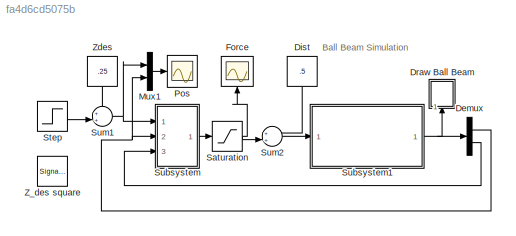
MODEL slx_fa4d6cd5075b
KIND model
CONFIG AbsTol = auto
CONFIG EnableMultiTasking = on
CONFIG FixedStep = auto
CONFIG InitFcn = param
CONFIG MaxStep = auto
CONFIG MinStep = auto
CONFIG RelTol = 1e-3
CONFIG SampleTimeConstraint = Unconstrained
CONFIG Solver = ode45
CONFIG SolverName = ode45
CONFIG StartTime = 0.0
CONFIG StopTime = 1000
BLOCK [Demux] Demux
  DisplayOption = bar
  Outputs = 2
  Ports = [1, 2]
BLOCK [Constant] Dist
  Value = .5
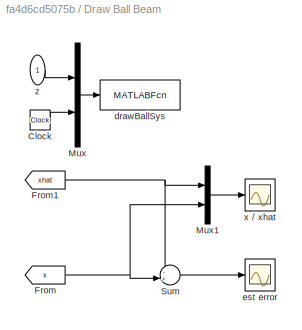
BLOCK [SubSystem] Draw Ball Beam
  Ports = [1]
  RequestExecContextInheritance = off
  Variant = off
BLOCK [Clock] Draw Ball Beam/Clock
BLOCK [From] Draw Ball Beam/From
  GotoTag = x
  TagVisibility = global
BLOCK [From] Draw Ball Beam/From1
  GotoTag = xhat
  TagVisibility = global
BLOCK [Mux] Draw Ball Beam/Mux
  DisplayOption = bar
  Inputs = 2
  Ports = [2, 1]
BLOCK [Mux] Draw Ball Beam/Mux1
  DisplayOption = bar
  Inputs = 2
  Ports = [2, 1]
BLOCK [Sum] Draw Ball Beam/Sum
  IconShape = round
  InputSameDT = off
  Inputs = -+|
  OutDataTypeStr = Inherit: Inherit via internal rule
  Ports = [2, 1]
  SaturateOnIntegerOverflow = off
BLOCK [MATLABFcn] Draw Ball Beam/drawBallSys
  MATLABFcn = drawBallSys(u)
  OutputDimensions = 0
  Ports = [1]
  SampleTime = .5
BLOCK [Scope] Draw Ball Beam/est error
  NumInputPorts = 1
  Ports = [1]
  ScopeSpecificationString = Simulink.scopes.TimeScopeBlockCfg('CurrentConfiguration', extmgr.ConfigurationSet(extmgr.Configuration('Core','General UI',true),extmgr.Configuration('Core','Source UI',true),extmgr.Configuration('Sources','WiredSimulink',true,'DataLoggingVariableName','ScopeData1','DataLoggingSaveFormat','StructureWithTime','DataLoggingLimitDataPoints',true,'DataLoggingDecimation','1','DataLoggingDecimateData',tr...<+1779ch>
BLOCK [Scope] Draw Ball Beam/x // xhat
  NumInputPorts = 1
  Ports = [1]
  ScopeSpecificationString = Simulink.scopes.TimeScopeBlockCfg('CurrentConfiguration', extmgr.ConfigurationSet(extmgr.Configuration('Core','General UI',true),extmgr.Configuration('Core','Source UI',true),extmgr.Configuration('Sources','WiredSimulink',true,'DataLoggingVariableName','ScopeData2','DataLoggingSaveFormat','StructureWithTime','DataLoggingLimitDataPoints',true,'DataLoggingDecimation','1','DataLoggingDecimateData',tr...<+1844ch>
BLOCK [Inport] Draw Ball Beam/z
  IconDisplay = Port number
BLOCK [Scope] Force
  NumInputPorts = 1
  Ports = [1]
  ScopeSpecificationString = Simulink.scopes.TimeScopeBlockCfg('CurrentConfiguration', extmgr.ConfigurationSet(extmgr.Configuration('Core','General UI',true),extmgr.Configuration('Core','Source UI',true),extmgr.Configuration('Sources','WiredSimulink',true,'DataLoggingVariableName','ScopeData1'),extmgr.Configuration('Visuals','Time Domain',true,'SerializedDisplays',{struct('MinYLimReal','-0.57692','MaxYLimReal','15.49451','YLa...<+1450ch>
BLOCK [Mux] Mux1
  DisplayOption = bar
  Inputs = 2
  Ports = [2, 1]
BLOCK [Scope] Pos
  NumInputPorts = 1
  Ports = [1]
  ScopeSpecificationString = Simulink.scopes.TimeScopeBlockCfg('CurrentConfiguration', extmgr.ConfigurationSet(extmgr.Configuration('Core','General UI',true),extmgr.Configuration('Core','Source UI',true),extmgr.Configuration('Sources','WiredSimulink',true),extmgr.Configuration('Visuals','Time Domain',true,'SerializedDisplays',{struct('MinYLimReal','-0.01246','MaxYLimReal','0.45856','YLabelReal','','MinYLimMag','0.00000','MaxY...<+1411ch>
BLOCK [Saturate] Saturation
  InputPortMap = u0
  LowerLimit = 0
  Ports = [1, 1]
  UpperLimit = 25
BLOCK [Step] Step
  After = -.15
  SampleTime = 0
  Time = 25
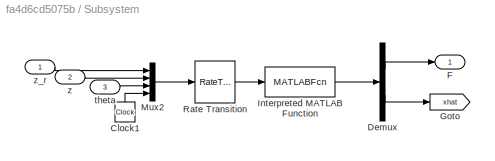
BLOCK [SubSystem] Subsystem
  Ports = [3, 1]
  RequestExecContextInheritance = off
  Variant = off
BLOCK [Clock] Subsystem/Clock1
BLOCK [Demux] Subsystem/Demux
  DisplayOption = bar
  Outputs = [1;4]
  Ports = [1, 2]
BLOCK [Outport] Subsystem/F
  IconDisplay = Port number
BLOCK [Goto] Subsystem/Goto
  GotoTag = xhat
  TagVisibility = global
BLOCK [MATLABFcn] Subsystem/Interpreted MATLAB Function
  MATLABFcn = ball_ctrl_obs(u,P)
  OutputDimensions = 1+4
  Ports = [1, 1]
BLOCK [Mux] Subsystem/Mux2
  DisplayOption = bar
  Ports = [4, 1]
BLOCK [RateTransition] Subsystem/Rate Transition
  OutPortSampleTime = P.Ts
BLOCK [Inport] Subsystem/theta
  IconDisplay = Port number
  Port = 3
BLOCK [Inport] Subsystem/z
  IconDisplay = Port number
  Port = 2
BLOCK [Inport] Subsystem/z_r
  IconDisplay = Port number
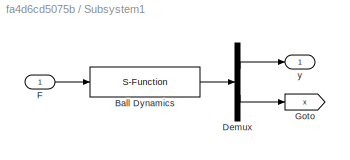
BLOCK [SubSystem] Subsystem1
  Ports = [1, 1]
  RequestExecContextInheritance = off
  Variant = off
BLOCK [S-Function] Subsystem1/Ball Dynamics
  EnableBusSupport = off
  FunctionName = ball_dynamics
  Parameters = P
  Ports = [1, 1]
  SFcnIsStateOwnerBlock = off
  SFunctionDeploymentMode = off
BLOCK [Demux] Subsystem1/Demux
  DisplayOption = bar
  Outputs = [2;4]
  Ports = [1, 2]
BLOCK [Inport] Subsystem1/F
  IconDisplay = Port number
BLOCK [Goto] Subsystem1/Goto
  GotoTag = x
  TagVisibility = global
BLOCK [Outport] Subsystem1/y
  IconDisplay = Port number
BLOCK [Sum] Sum1
  IconShape = round
  InputSameDT = off
  Inputs = ++|
  OutDataTypeStr = Inherit: Inherit via internal rule
  Ports = [2, 1]
  SaturateOnIntegerOverflow = off
BLOCK [Sum] Sum2
  IconShape = round
  InputSameDT = off
  Inputs = ++|
  OutDataTypeStr = Inherit: Inherit via internal rule
  Ports = [2, 1]
  SaturateOnIntegerOverflow = off
BLOCK [SignalGenerator] Z_des square
  Amplitude = .15
  Frequency = .03
  Ports = [0, 1]
  WaveForm = square
BLOCK [Constant] Zdes
  Value = .25
ANNOTATION (root): Ball Beam Simulation
NET Demux:1 -> Mux1:2, Subsystem:2
LINE Demux:2 -> Subsystem:3
LINE Dist:1 -> Sum2:1
LINE Draw Ball Beam/Clock:1 -> Draw Ball Beam/Mux:2
NET Draw Ball Beam/From1:1 -> Draw Ball Beam/Mux1:1, Draw Ball Beam/Sum:1
NET Draw Ball Beam/From:1 -> Draw Ball Beam/Mux1:2, Draw Ball Beam/Sum:2
LINE Draw Ball Beam/Mux1:1 -> Draw Ball Beam/x // xhat:1
LINE Draw Ball Beam/Mux:1 -> Draw Ball Beam/drawBallSys:1
LINE Draw Ball Beam/Sum:1 -> Draw Ball Beam/est error:1
LINE Draw Ball Beam/z:1 -> Draw Ball Beam/Mux:1
LINE Mux1:1 -> Pos:1
NET Saturation:1 -> Force:1, Sum2:2
LINE Step:1 -> Sum1:2
LINE Subsystem/Clock1:1 -> Subsystem/Mux2:4
LINE Subsystem/Demux:1 -> Subsystem/F:1
LINE Subsystem/Demux:2 -> Subsystem/Goto:1
LINE Subsystem/Interpreted MATLAB Function:1 -> Subsystem/Demux:1
LINE Subsystem/Mux2:1 -> Subsystem/Rate Transition:1
LINE Subsystem/Rate Transition:1 -> Subsystem/Interpreted MATLAB Function:1
LINE Subsystem/theta:1 -> Subsystem/Mux2:3
LINE Subsystem/z:1 -> Subsystem/Mux2:2
LINE Subsystem/z_r:1 -> Subsystem/Mux2:1
LINE Subsystem1/Ball Dynamics:1 -> Subsystem1/Demux:1
LINE Subsystem1/Demux:1 -> Subsystem1/y:1
LINE Subsystem1/Demux:2 -> Subsystem1/Goto:1
LINE Subsystem1/F:1 -> Subsystem1/Ball Dynamics:1
NET Subsystem1:1 -> Demux:1, Draw Ball Beam:1
LINE Subsystem:1 -> Saturation:1
NET Sum1:1 -> Mux1:1, Subsystem:1
LINE Sum2:1 -> Subsystem1:1
LINE Zdes:1 -> Sum1:1
note: NET lines group one-source signal fan-out (src -> all destinations, sorted); 1:1 wires keep LINE
